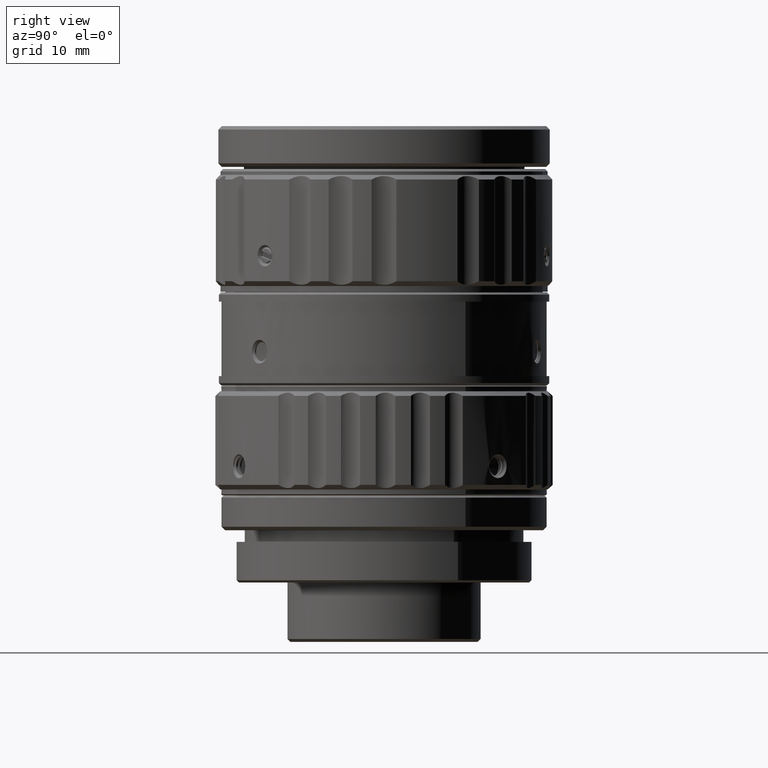
[diagram: clean part render]
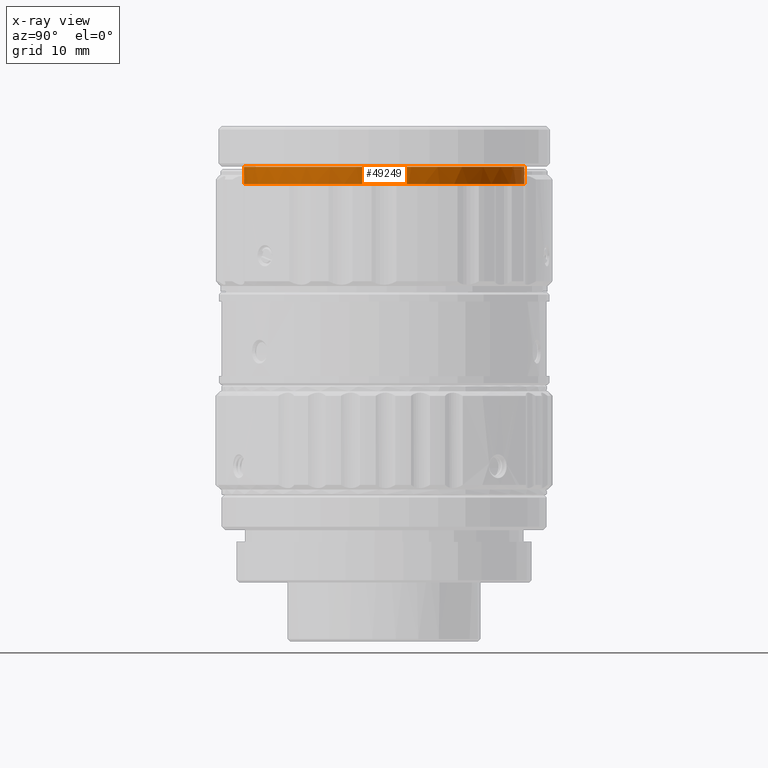
[diagram: x-ray — body ghosted, one internal face saturated and labeled with its STEP entity id]
A machine part, right view, then the same camera in x-ray: the body is ghosted and one INTERNAL B-rep face — a face not visible from any outside direction — is saturated and labeled: STEP entity #49249.
In plain terms, the highlighted cylindrical surface (partial cylindrical patch) has radius 12.05 mm, axis along (0, 0, -1).
Its self-contained STEP definition (entity closure, byte-faithful):
#1638 = CARTESIAN_POINT ( 'NONE',  ( 0.000000000000000000, 0.000000000000000000, 32.74000007215799712 ) ) ;
#2425 = CYLINDRICAL_SURFACE ( 'NONE', #48030, 12.04999999982000070 ) ;
#2992 = CARTESIAN_POINT ( 'NONE',  ( 0.000000000000000000, -12.04999999982000070, 39.13000000289000013 ) ) ;
#10207 = VERTEX_POINT ( 'NONE', #11337 ) ;
#11337 = CARTESIAN_POINT ( 'NONE',  ( -1.475699392950517091E-15, 12.04999999982000070, 34.24000000585199643 ) ) ;
#13894 = CARTESIAN_POINT ( 'NONE',  ( 0.000000000000000000, 0.000000000000000000, 39.13000000289000013 ) ) ;
#14477 = DIRECTION ( 'NONE',  ( 0.000000000000000000, 0.000000000000000000, -1.000000000000000000 ) ) ;
#14984 = EDGE_CURVE ( 'NONE', #20268, #68715, #19001, .T. ) ;
#15211 = EDGE_CURVE ( 'NONE', #10207, #20268, #38601, .T. ) ;
#16386 = CARTESIAN_POINT ( 'NONE',  ( 0.000000000000000000, -12.04999999982000070, 34.24000000585199643 ) ) ;
#17530 = VECTOR ( 'NONE', #60651, 1000.000000000000000 ) ;
#18529 = ORIENTED_EDGE ( 'NONE', *, *, #14984, .T. ) ;
#19001 = LINE ( 'NONE', #2992, #17530 ) ;
#19703 = DIRECTION ( 'NONE',  ( -1.000000000000000000, 0.000000000000000000, 0.000000000000000000 ) ) ;
#20268 = VERTEX_POINT ( 'NONE', #16386 ) ;
#21573 = ORIENTED_EDGE ( 'NONE', *, *, #42970, .F. ) ;
#21989 = VERTEX_POINT ( 'NONE', #36219 ) ;
#22853 = DIRECTION ( 'NONE',  ( 0.000000000000000000, 0.000000000000000000, 1.000000000000000000 ) ) ;
#26291 = DIRECTION ( 'NONE',  ( 0.000000000000000000, -1.000000000000000000, 0.000000000000000000 ) ) ;
#31936 = AXIS2_PLACEMENT_3D ( 'NONE', #42236, #14477, #26291 ) ;
#35950 = VECTOR ( 'NONE', #64568, 1000.000000000000000 ) ;
#36219 = CARTESIAN_POINT ( 'NONE',  ( -1.475699392950517091E-15, 12.04999999982000070, 32.74000007215799712 ) ) ;
#38601 = CIRCLE ( 'NONE', #31936, 12.04999999982000070 ) ;
#38939 = DIRECTION ( 'NONE',  ( 0.000000000000000000, -1.000000000000000000, 0.000000000000000000 ) ) ;
#39294 = ORIENTED_EDGE ( 'NONE', *, *, #50939, .T. ) ;
#42236 = CARTESIAN_POINT ( 'NONE',  ( 0.000000000000000000, 0.000000000000000000, 34.24000000585199643 ) ) ;
#42970 = EDGE_CURVE ( 'NONE', #10207, #21989, #58015, .T. ) ;
#43412 = CARTESIAN_POINT ( 'NONE',  ( -1.475699392950517091E-15, 12.04999999982000070, 39.13000000289000013 ) ) ;
#44257 = EDGE_LOOP ( 'NONE', ( #21573, #63527, #18529, #39294 ) ) ;
#45841 = AXIS2_PLACEMENT_3D ( 'NONE', #1638, #22853, #19703 ) ;
#46948 = CIRCLE ( 'NONE', #45841, 12.04999999982000070 ) ;
#48030 = AXIS2_PLACEMENT_3D ( 'NONE', #13894, #65292, #38939 ) ;
#49249 = ADVANCED_FACE ( 'NONE', ( #61463 ), #2425, .T. ) ;
#50939 = EDGE_CURVE ( 'NONE', #68715, #21989, #46948, .T. ) ;
#58015 = LINE ( 'NONE', #43412, #35950 ) ;
#59463 = CARTESIAN_POINT ( 'NONE',  ( 0.000000000000000000, -12.04999999982000070, 32.74000007215799712 ) ) ;
#60651 = DIRECTION ( 'NONE',  ( 0.000000000000000000, 0.000000000000000000, -1.000000000000000000 ) ) ;
#61463 = FACE_OUTER_BOUND ( 'NONE', #44257, .T. ) ;
#63527 = ORIENTED_EDGE ( 'NONE', *, *, #15211, .T. ) ;
#64568 = DIRECTION ( 'NONE',  ( 0.000000000000000000, 0.000000000000000000, -1.000000000000000000 ) ) ;
#65292 = DIRECTION ( 'NONE',  ( 0.000000000000000000, 0.000000000000000000, -1.000000000000000000 ) ) ;
#68715 = VERTEX_POINT ( 'NONE', #59463 ) ;